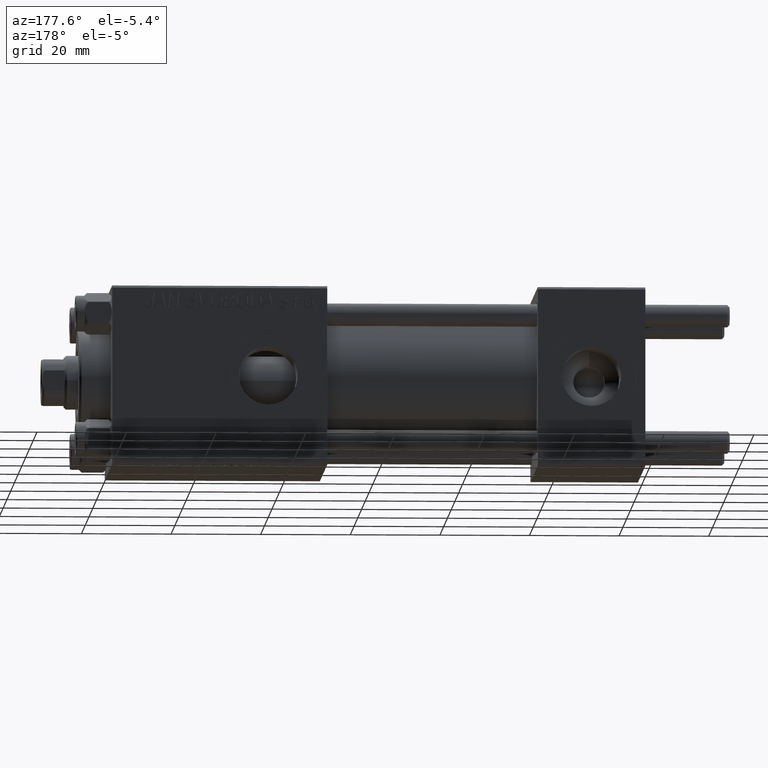
[diagram: clean part render]
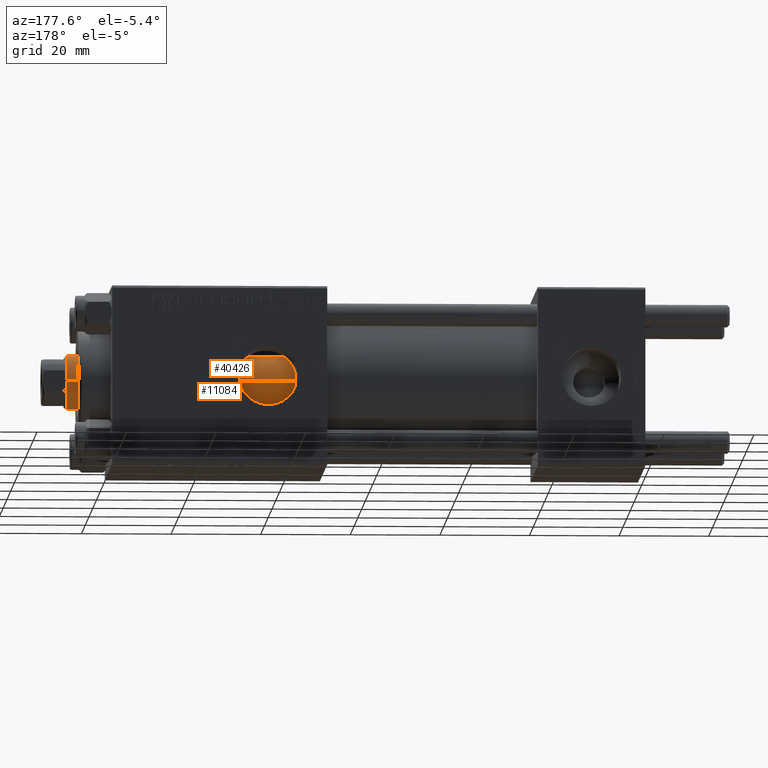
[diagram: same view with one multi-face feature highlighted, each face labeled with its STEP entity id]
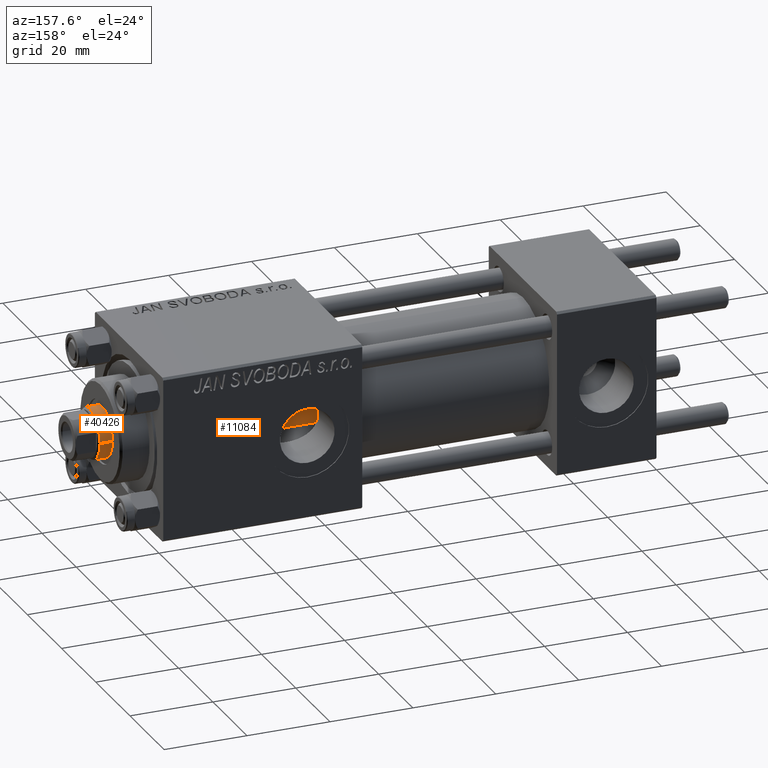
[diagram: same view with one multi-face feature highlighted, each face labeled with its STEP entity id]
A machine part, auxiliary view. The highlighted faces form ONE feature: a constant-radius fillet chain: 2 tangent blend faces with common blend radius 6 mm. The faces share edges in the B-rep.
A second angle (auxiliary view) of the same feature is appended — it is thin or edge-on in the first view.
Their STEP definitions:
[1] entity #40426 (Cylinder):
#645 = CARTESIAN_POINT ( 'NONE',  ( 0.000000000000000000, 0.000000000000000000, 27.00000000000000000 ) ) ;
#821 = EDGE_CURVE ( 'NONE', #20268, #19303, #8525, .T. ) ;
#2507 = CARTESIAN_POINT ( 'NONE',  ( 6.000000000000000888, 7.347880794884120722E-16, 105.0000000000000000 ) ) ;
#3766 = CARTESIAN_POINT ( 'NONE',  ( -6.000000000000000888, 0.000000000000000000, 105.0000000000000000 ) ) ;
#5088 = VECTOR ( 'NONE', #5257, 1000.000000000000000 ) ;
#5257 = DIRECTION ( 'NONE',  ( -0.000000000000000000, -0.000000000000000000, -1.000000000000000000 ) ) ;
#5803 = ORIENTED_EDGE ( 'NONE', *, *, #25994, .T. ) ;
#8525 = LINE ( 'NONE', #3766, #17556 ) ;
#8916 = DIRECTION ( 'NONE',  ( 0.000000000000000000, 0.000000000000000000, 1.000000000000000000 ) ) ;
#9609 = CARTESIAN_POINT ( 'NONE',  ( 0.000000000000000000, 0.000000000000000000, 105.0000000000000000 ) ) ;
#10025 = LINE ( 'NONE', #2507, #5088 ) ;
#13171 = DIRECTION ( 'NONE',  ( 1.000000000000000000, 0.000000000000000000, 0.000000000000000000 ) ) ;
#13657 = ORIENTED_EDGE ( 'NONE', *, *, #17296, .F. ) ;
#15853 = EDGE_LOOP ( 'NONE', ( #13657, #19339, #40778, #5803 ) ) ;
#16036 = CARTESIAN_POINT ( 'NONE',  ( 0.000000000000000000, 0.000000000000000000, 104.5000000000000142 ) ) ;
#17296 = EDGE_CURVE ( 'NONE', #29182, #19713, #10025, .T. ) ;
#17336 = AXIS2_PLACEMENT_3D ( 'NONE', #645, #8916, #13171 ) ;
#17556 = VECTOR ( 'NONE', #42285, 1000.000000000000000 ) ;
#19303 = VERTEX_POINT ( 'NONE', #44745 ) ;
#19339 = ORIENTED_EDGE ( 'NONE', *, *, #34577, .T. ) ;
#19713 = VERTEX_POINT ( 'NONE', #25775 ) ;
#20268 = VERTEX_POINT ( 'NONE', #38745 ) ;
#21440 = DIRECTION ( 'NONE',  ( -1.000000000000000000, 0.000000000000000000, 0.000000000000000000 ) ) ;
#25716 = DIRECTION ( 'NONE',  ( -0.000000000000000000, -0.000000000000000000, -1.000000000000000000 ) ) ;
#25775 = CARTESIAN_POINT ( 'NONE',  ( 6.000000000000000888, 7.347880794884120722E-16, 27.00000000000000000 ) ) ;
#25994 = EDGE_CURVE ( 'NONE', #19303, #19713, #47079, .T. ) ;
#27622 = DIRECTION ( 'NONE',  ( 1.000000000000000000, 0.000000000000000000, 0.000000000000000000 ) ) ;
#28663 = CARTESIAN_POINT ( 'NONE',  ( 6.000000000000000888, 7.347880794884120722E-16, 104.5000000000000142 ) ) ;
#29004 = FACE_OUTER_BOUND ( 'NONE', #15853, .T. ) ;
#29182 = VERTEX_POINT ( 'NONE', #28663 ) ;
#30282 = CIRCLE ( 'NONE', #43962, 6.000000000000000888 ) ;
#31142 = AXIS2_PLACEMENT_3D ( 'NONE', #9609, #25716, #21440 ) ;
#31393 = DIRECTION ( 'NONE',  ( 0.000000000000000000, 0.000000000000000000, -1.000000000000000000 ) ) ;
#34577 = EDGE_CURVE ( 'NONE', #29182, #20268, #30282, .T. ) ;
#38745 = CARTESIAN_POINT ( 'NONE',  ( -6.000000000000000888, 0.000000000000000000, 104.5000000000000142 ) ) ;
#40426 = ADVANCED_FACE ( 'NONE', ( #29004 ), #47906, .T. ) ;
#40778 = ORIENTED_EDGE ( 'NONE', *, *, #821, .T. ) ;
#42285 = DIRECTION ( 'NONE',  ( -0.000000000000000000, -0.000000000000000000, -1.000000000000000000 ) ) ;
#43962 = AXIS2_PLACEMENT_3D ( 'NONE', #16036, #31393, #27622 ) ;
#44745 = CARTESIAN_POINT ( 'NONE',  ( -6.000000000000000888, 0.000000000000000000, 27.00000000000000000 ) ) ;
#47079 = CIRCLE ( 'NONE', #17336, 6.000000000000000888 ) ;
#47906 = CYLINDRICAL_SURFACE ( 'NONE', #31142, 6.000000000000000888 ) ;
[2] entity #11084 (Cylinder):
#64 = EDGE_LOOP ( 'NONE', ( #19998, #39430, #41781, #44235 ) ) ;
#821 = EDGE_CURVE ( 'NONE', #20268, #19303, #8525, .T. ) ;
#1439 = EDGE_CURVE ( 'NONE', #20268, #29182, #2278, .T. ) ;
#2278 = CIRCLE ( 'NONE', #21535, 6.000000000000000888 ) ;
#2353 = CARTESIAN_POINT ( 'NONE',  ( 0.000000000000000000, 0.000000000000000000, 105.0000000000000000 ) ) ;
#2507 = CARTESIAN_POINT ( 'NONE',  ( 6.000000000000000888, 7.347880794884120722E-16, 105.0000000000000000 ) ) ;
#3766 = CARTESIAN_POINT ( 'NONE',  ( -6.000000000000000888, 0.000000000000000000, 105.0000000000000000 ) ) ;
#5088 = VECTOR ( 'NONE', #5257, 1000.000000000000000 ) ;
#5255 = EDGE_CURVE ( 'NONE', #19713, #19303, #49124, .T. ) ;
#5257 = DIRECTION ( 'NONE',  ( -0.000000000000000000, -0.000000000000000000, -1.000000000000000000 ) ) ;
#8525 = LINE ( 'NONE', #3766, #17556 ) ;
#10025 = LINE ( 'NONE', #2507, #5088 ) ;
#11084 = ADVANCED_FACE ( 'NONE', ( #44889 ), #36833, .T. ) ;
#15571 = DIRECTION ( 'NONE',  ( 0.000000000000000000, 0.000000000000000000, 1.000000000000000000 ) ) ;
#16093 = AXIS2_PLACEMENT_3D ( 'NONE', #37755, #15571, #34458 ) ;
#17296 = EDGE_CURVE ( 'NONE', #29182, #19713, #10025, .T. ) ;
#17556 = VECTOR ( 'NONE', #42285, 1000.000000000000000 ) ;
#19303 = VERTEX_POINT ( 'NONE', #44745 ) ;
#19713 = VERTEX_POINT ( 'NONE', #25775 ) ;
#19998 = ORIENTED_EDGE ( 'NONE', *, *, #1439, .T. ) ;
#20268 = VERTEX_POINT ( 'NONE', #38745 ) ;
#20705 = CARTESIAN_POINT ( 'NONE',  ( 0.000000000000000000, 0.000000000000000000, 104.5000000000000142 ) ) ;
#21535 = AXIS2_PLACEMENT_3D ( 'NONE', #20705, #35834, #40117 ) ;
#25729 = DIRECTION ( 'NONE',  ( -1.000000000000000000, 0.000000000000000000, 0.000000000000000000 ) ) ;
#25775 = CARTESIAN_POINT ( 'NONE',  ( 6.000000000000000888, 7.347880794884120722E-16, 27.00000000000000000 ) ) ;
#28663 = CARTESIAN_POINT ( 'NONE',  ( 6.000000000000000888, 7.347880794884120722E-16, 104.5000000000000142 ) ) ;
#29182 = VERTEX_POINT ( 'NONE', #28663 ) ;
#29997 = DIRECTION ( 'NONE',  ( -0.000000000000000000, -0.000000000000000000, -1.000000000000000000 ) ) ;
#32259 = AXIS2_PLACEMENT_3D ( 'NONE', #2353, #29997, #25729 ) ;
#34458 = DIRECTION ( 'NONE',  ( 1.000000000000000000, 0.000000000000000000, 0.000000000000000000 ) ) ;
#35834 = DIRECTION ( 'NONE',  ( 0.000000000000000000, 0.000000000000000000, -1.000000000000000000 ) ) ;
#36833 = CYLINDRICAL_SURFACE ( 'NONE', #32259, 6.000000000000000888 ) ;
#37755 = CARTESIAN_POINT ( 'NONE',  ( 0.000000000000000000, 0.000000000000000000, 27.00000000000000000 ) ) ;
#38745 = CARTESIAN_POINT ( 'NONE',  ( -6.000000000000000888, 0.000000000000000000, 104.5000000000000142 ) ) ;
#39430 = ORIENTED_EDGE ( 'NONE', *, *, #17296, .T. ) ;
#40117 = DIRECTION ( 'NONE',  ( 1.000000000000000000, 0.000000000000000000, 0.000000000000000000 ) ) ;
#41781 = ORIENTED_EDGE ( 'NONE', *, *, #5255, .T. ) ;
#42285 = DIRECTION ( 'NONE',  ( -0.000000000000000000, -0.000000000000000000, -1.000000000000000000 ) ) ;
#44235 = ORIENTED_EDGE ( 'NONE', *, *, #821, .F. ) ;
#44745 = CARTESIAN_POINT ( 'NONE',  ( -6.000000000000000888, 0.000000000000000000, 27.00000000000000000 ) ) ;
#44889 = FACE_OUTER_BOUND ( 'NONE', #64, .T. ) ;
#49124 = CIRCLE ( 'NONE', #16093, 6.000000000000000888 ) ;